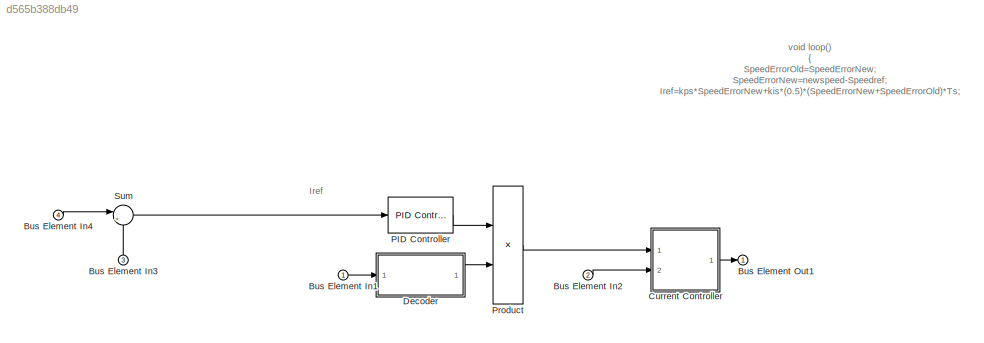
MODEL slx_d565b388db49
KIND model
CONFIG AbsTol = auto
CONFIG EnableMultiTasking = off
CONFIG FixedStep = auto
CONFIG MaxStep = auto
CONFIG MinStep = auto
CONFIG RelTol = 1e-3
CONFIG SampleTimeConstraint = Unconstrained
CONFIG Solver = VariableStepAuto
CONFIG SolverName = VariableStepAuto
CONFIG StartTime = 0.0
CONFIG StopTime = 10.0
BLOCK [Inport] Bus Element In1
BLOCK [Inport] Bus Element In2
  Port = 2
BLOCK [Inport] Bus Element In3
  NameLocation = right
  Port = 3
BLOCK [Inport] Bus Element In4
  Port = 4
BLOCK [Outport] Bus Element Out1
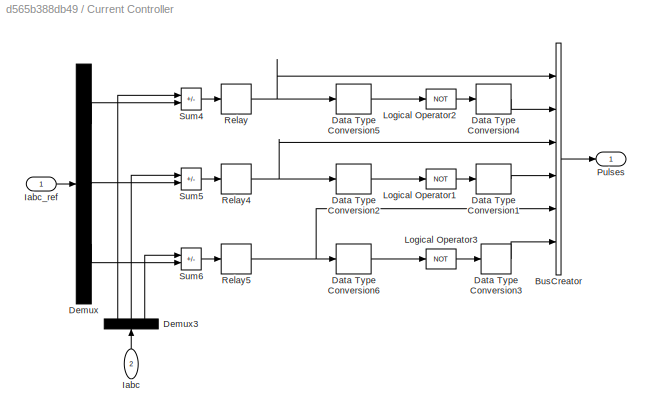
BLOCK [SubSystem] Current Controller
  NameLocation = top
  Ports = [2, 1]
  RequestExecContextInheritance = off
BLOCK [BusCreator] Current Controller/BusCreator
  InheritFromInputs = on
  Inputs = 6
  Ports = [6, 1]
BLOCK [DataTypeConversion] Current Controller/Data Type Conversion1
BLOCK [DataTypeConversion] Current Controller/Data Type Conversion2
BLOCK [DataTypeConversion] Current Controller/Data Type Conversion3
BLOCK [DataTypeConversion] Current Controller/Data Type Conversion4
BLOCK [DataTypeConversion] Current Controller/Data Type Conversion5
BLOCK [DataTypeConversion] Current Controller/Data Type Conversion6
BLOCK [Demux] Current Controller/Demux
  Outputs = 3
  Ports = [1, 3]
BLOCK [Demux] Current Controller/Demux3
  NameLocation = right
  Outputs = 3
  Ports = [1, 3]
BLOCK [Inport] Current Controller/Iabc
  NameLocation = left
  Port = 2
BLOCK [Inport] Current Controller/Iabc_ref
  NameLocation = top
BLOCK [Logic] Current Controller/Logical Operator1
  Operator = NOT
  Ports = [1, 1]
BLOCK [Logic] Current Controller/Logical Operator2
  Operator = NOT
  Ports = [1, 1]
BLOCK [Logic] Current Controller/Logical Operator3
  Operator = NOT
  Ports = [1, 1]
BLOCK [Outport] Current Controller/Pulses
  NameLocation = top
BLOCK [Relay] Current Controller/Relay
  OffSwitchValue = -1/2
  OnSwitchValue = 1/2
BLOCK [Relay] Current Controller/Relay4
  OffSwitchValue = -1/2
  OnSwitchValue = 1/2
BLOCK [Relay] Current Controller/Relay5
  OffSwitchValue = -1/2
  OnSwitchValue = 1/2
BLOCK [Sum] Current Controller/Sum4
  IconShape = rectangular
  InputSameDT = on
  Inputs = -+
  OutDataTypeStr = Inherit: Same as first input
  Ports = [2, 1]
  SaturateOnIntegerOverflow = on
BLOCK [Sum] Current Controller/Sum5
  IconShape = rectangular
  InputSameDT = on
  Inputs = -+
  OutDataTypeStr = Inherit: Same as first input
  Ports = [2, 1]
  SaturateOnIntegerOverflow = on
BLOCK [Sum] Current Controller/Sum6
  IconShape = rectangular
  InputSameDT = on
  Inputs = -+
  OutDataTypeStr = Inherit: Same as first input
  Ports = [2, 1]
  SaturateOnIntegerOverflow = on
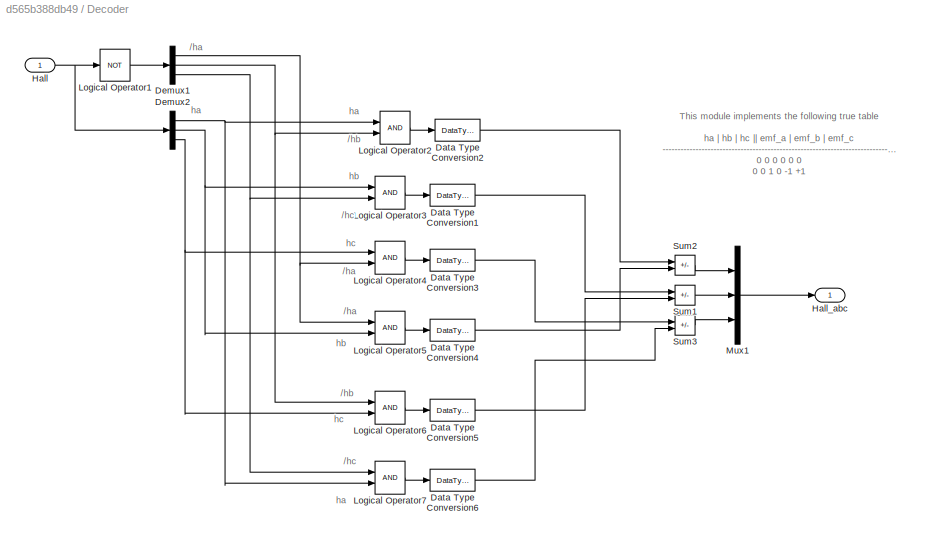
BLOCK [SubSystem] Decoder
  NameLocation = top
  Ports = [1, 1]
  RequestExecContextInheritance = off
BLOCK [DataTypeConversion] Decoder/Data Type Conversion1
  RndMeth = Floor
  SaturateOnIntegerOverflow = off
BLOCK [DataTypeConversion] Decoder/Data Type Conversion2
  RndMeth = Floor
  SaturateOnIntegerOverflow = off
BLOCK [DataTypeConversion] Decoder/Data Type Conversion3
  RndMeth = Floor
  SaturateOnIntegerOverflow = off
BLOCK [DataTypeConversion] Decoder/Data Type Conversion4
  RndMeth = Floor
  SaturateOnIntegerOverflow = off
BLOCK [DataTypeConversion] Decoder/Data Type Conversion5
  RndMeth = Floor
  SaturateOnIntegerOverflow = off
BLOCK [DataTypeConversion] Decoder/Data Type Conversion6
  RndMeth = Floor
  SaturateOnIntegerOverflow = off
BLOCK [Demux] Decoder/Demux1
  Outputs = 3
  Ports = [1, 3]
BLOCK [Demux] Decoder/Demux2
  Outputs = 3
  Ports = [1, 3]
BLOCK [Inport] Decoder/Hall 
BLOCK [Outport] Decoder/Hall_abc
BLOCK [Logic] Decoder/Logical Operator1
  AllPortsSameDT = off
  Operator = NOT
  OutDataTypeStr = boolean
  Ports = [1, 1]
BLOCK [Logic] Decoder/Logical Operator2
  AllPortsSameDT = off
  OutDataTypeStr = boolean
  Ports = [2, 1]
BLOCK [Logic] Decoder/Logical Operator3
  AllPortsSameDT = off
  OutDataTypeStr = boolean
  Ports = [2, 1]
BLOCK [Logic] Decoder/Logical Operator4
  AllPortsSameDT = off
  OutDataTypeStr = boolean
  Ports = [2, 1]
BLOCK [Logic] Decoder/Logical Operator5
  AllPortsSameDT = off
  OutDataTypeStr = boolean
  Ports = [2, 1]
BLOCK [Logic] Decoder/Logical Operator6
  AllPortsSameDT = off
  OutDataTypeStr = boolean
  Ports = [2, 1]
BLOCK [Logic] Decoder/Logical Operator7
  AllPortsSameDT = off
  OutDataTypeStr = boolean
  Ports = [2, 1]
BLOCK [Mux] Decoder/Mux1
  DisplayOption = bar
  Inputs = 3
  Ports = [3, 1]
BLOCK [Sum] Decoder/Sum1
  IconShape = rectangular
  Inputs = +-
  OutDataTypeStr = double
  Ports = [2, 1]
BLOCK [Sum] Decoder/Sum2
  IconShape = rectangular
  Inputs = +-
  OutDataTypeStr = double
  Ports = [2, 1]
BLOCK [Sum] Decoder/Sum3
  IconShape = rectangular
  Inputs = +-
  OutDataTypeStr = double
  Ports = [2, 1]
BLOCK [Reference] PID Controller  REF=simulink/Continuous/PID Controller
  NameLocation = top
  Ports = [1, 1]
  SourceBlock = simulink/Continuous/PID Controller
  SourceProductBaseCode = SL
  SourceType = PID 1dof
BLOCK [Product] Product
  NameLocation = top
  Ports = [2, 1]
BLOCK [Sum] Sum
  Inputs = |+-
  NameLocation = top
  Ports = [2, 1]
ANNOTATION (root): Iref
ANNOTATION (root): void loop() { SpeedErrorOld=SpeedErrorNew; SpeedErrorNew=newspeed-Speedref; Iref=kps*SpeedErrorNew+kis*(0.5)*(SpeedErrorNew+SpeedErrorOld)*Ts; if (newstate==B000){EMFA=0;EMFB=0;EMFC=0;} if (newstate==B001){EMFA=0;EMFB=-1;EMFC=1;} if (newstate==B010){EMFA=-1;EMFB=1;EMFC=0;} if (newstate==B011){EMFA=-1;EMFB=0;EMFC=1;} if (newstate==B100){EMFA=1;EMFB=0;EMFC=-1;} if (newstate==B101){EMFA=1;EMFB=-1;EMF...<+384ch>
ANNOTATION Decoder: /ha
ANNOTATION Decoder: /hb
ANNOTATION Decoder: /hc
ANNOTATION Decoder: This module implements the following true table ha | hb | hc || emf_a | emf_b | emf_c -------------------------------------------------------------------------------- 0 0 0 0 0 0 0 0 1 0 -1 +1 0 1 0 -1 +1 0 0 1 1 -1 0 +1 1 0 0 +1 0 -1 1 0 1 +1 -1 0 1 1 0 0 +1 -1 1 1 1 0 0 0
ANNOTATION Decoder: ha
ANNOTATION Decoder: hb
ANNOTATION Decoder: hc
LINE Bus Element In1:1 -> Decoder:1
LINE Bus Element In2:1 -> Current Controller:2
LINE Bus Element In3:1 -> Sum:2
LINE Bus Element In4:1 -> Sum:1
LINE Current Controller/BusCreator:1 -> Current Controller/Pulses:1
LINE Current Controller/Data Type Conversion1:1 -> Current Controller/BusCreator:4
LINE Current Controller/Data Type Conversion2:1 -> Current Controller/Logical Operator1:1
LINE Current Controller/Data Type Conversion3:1 -> Current Controller/BusCreator:6
LINE Current Controller/Data Type Conversion4:1 -> Current Controller/BusCreator:2
LINE Current Controller/Data Type Conversion5:1 -> Current Controller/Logical Operator2:1
LINE Current Controller/Data Type Conversion6:1 -> Current Controller/Logical Operator3:1
LINE Current Controller/Demux3:1 -> Current Controller/Sum4:1
LINE Current Controller/Demux3:2 -> Current Controller/Sum5:1
LINE Current Controller/Demux3:3 -> Current Controller/Sum6:1
LINE Current Controller/Demux:1 -> Current Controller/Sum4:2
LINE Current Controller/Demux:2 -> Current Controller/Sum5:2
LINE Current Controller/Demux:3 -> Current Controller/Sum6:2
LINE Current Controller/Iabc:1 -> Current Controller/Demux3:1
LINE Current Controller/Iabc_ref:1 -> Current Controller/Demux:1
LINE Current Controller/Logical Operator1:1 -> Current Controller/Data Type Conversion1:1
LINE Current Controller/Logical Operator2:1 -> Current Controller/Data Type Conversion4:1
LINE Current Controller/Logical Operator3:1 -> Current Controller/Data Type Conversion3:1
NET Current Controller/Relay4:1 -> Current Controller/BusCreator:3, Current Controller/Data Type Conversion2:1
NET Current Controller/Relay5:1 -> Current Controller/BusCreator:5, Current Controller/Data Type Conversion6:1
NET Current Controller/Relay:1 -> Current Controller/BusCreator:1, Current Controller/Data Type Conversion5:1
LINE Current Controller/Sum4:1 -> Current Controller/Relay:1
LINE Current Controller/Sum5:1 -> Current Controller/Relay4:1
LINE Current Controller/Sum6:1 -> Current Controller/Relay5:1
LINE Current Controller:1 -> Bus Element Out1:1
LINE Decoder/Data Type Conversion1:1 -> Decoder/Sum1:1
LINE Decoder/Data Type Conversion2:1 -> Decoder/Sum2:1
LINE Decoder/Data Type Conversion3:1 -> Decoder/Sum3:1
LINE Decoder/Data Type Conversion4:1 -> Decoder/Sum2:2
LINE Decoder/Data Type Conversion5:1 -> Decoder/Sum1:2
LINE Decoder/Data Type Conversion6:1 -> Decoder/Sum3:2
NET Decoder/Demux1:1 -> Decoder/Logical Operator4:2, Decoder/Logical Operator5:1
NET Decoder/Demux1:2 -> Decoder/Logical Operator2:2, Decoder/Logical Operator6:1
NET Decoder/Demux1:3 -> Decoder/Logical Operator3:2, Decoder/Logical Operator7:1
NET Decoder/Demux2:1 -> Decoder/Logical Operator2:1, Decoder/Logical Operator7:2
NET Decoder/Demux2:2 -> Decoder/Logical Operator3:1, Decoder/Logical Operator5:2
NET Decoder/Demux2:3 -> Decoder/Logical Operator4:1, Decoder/Logical Operator6:2
NET Decoder/Hall :1 -> Decoder/Demux2:1, Decoder/Logical Operator1:1
LINE Decoder/Logical Operator1:1 -> Decoder/Demux1:1
LINE Decoder/Logical Operator2:1 -> Decoder/Data Type Conversion2:1
LINE Decoder/Logical Operator3:1 -> Decoder/Data Type Conversion1:1
LINE Decoder/Logical Operator4:1 -> Decoder/Data Type Conversion3:1
LINE Decoder/Logical Operator5:1 -> Decoder/Data Type Conversion4:1
LINE Decoder/Logical Operator6:1 -> Decoder/Data Type Conversion5:1
LINE Decoder/Logical Operator7:1 -> Decoder/Data Type Conversion6:1
LINE Decoder/Mux1:1 -> Decoder/Hall_abc:1
LINE Decoder/Sum1:1 -> Decoder/Mux1:2
LINE Decoder/Sum2:1 -> Decoder/Mux1:1
LINE Decoder/Sum3:1 -> Decoder/Mux1:3
LINE Decoder:1 -> Product:2
LINE PID Controller:1 -> Product:1
LINE Product:1 -> Current Controller:1
LINE Sum:1 -> PID Controller:1
note: NET lines group one-source signal fan-out (src -> all destinations, sorted); 1:1 wires keep LINE
